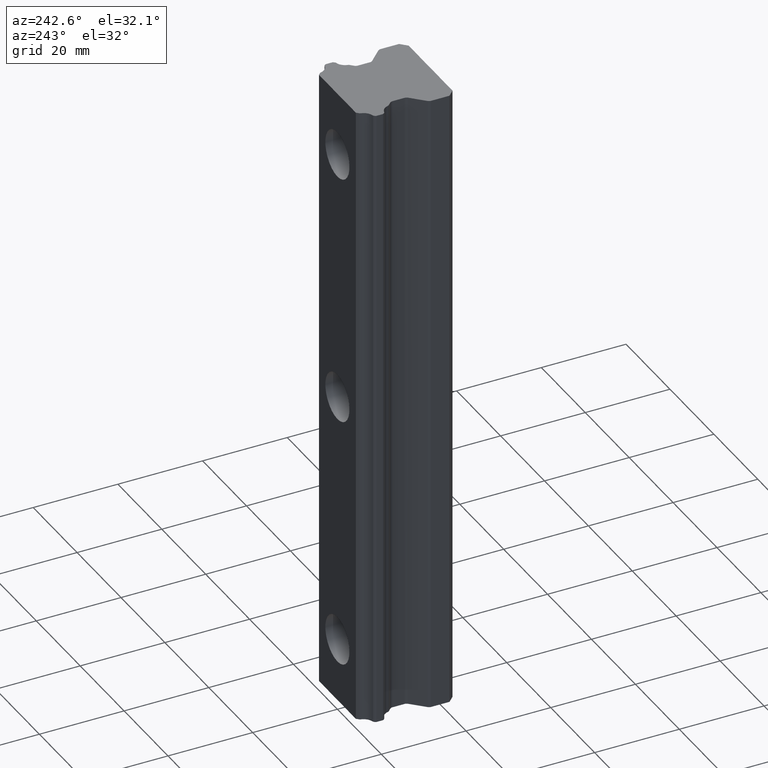
[diagram: clean part render]
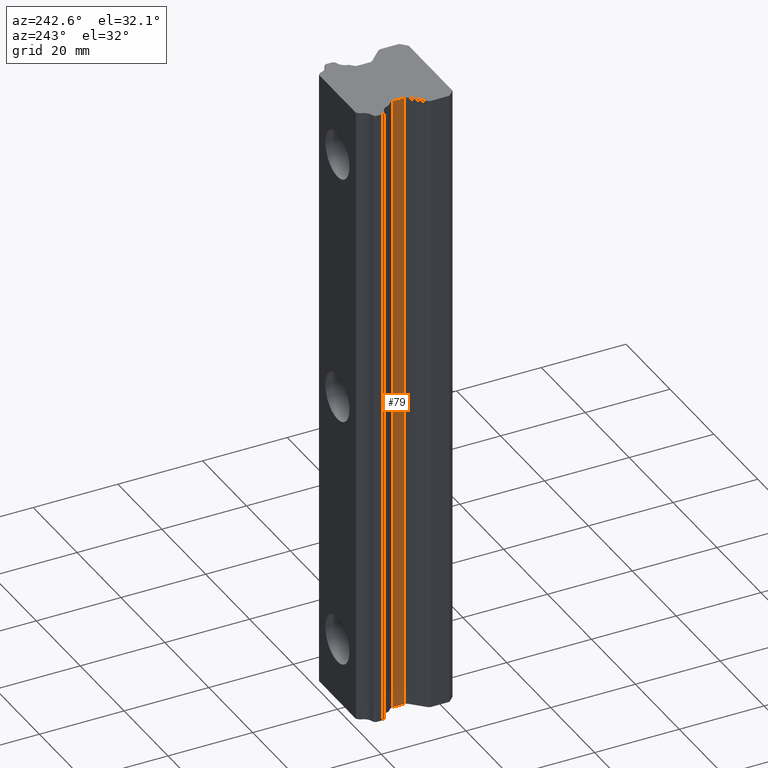
[diagram: same view with one face highlighted and labeled with its STEP entity id]
A machine part, auxiliary view. The second image highlights one B-rep face of the part: STEP entity #79.
In plain terms, the highlighted planar face has unit normal (-1, 0, 0).
Its self-contained STEP definition (entity closure, byte-faithful):
#59 = ORIENTED_EDGE ( 'NONE', *, *, #466, .T. ) ;
#79 = ADVANCED_FACE ( 'NONE', ( #598 ), #597, .T. ) ;
#82 = ORIENTED_EDGE ( 'NONE', *, *, #461, .T. ) ;
#97 = EDGE_LOOP ( 'NONE', ( #82, #108, #59, #111 ) ) ;
#104 = EDGE_CURVE ( 'NONE', #459, #492, #636, .T. ) ;
#108 = ORIENTED_EDGE ( 'NONE', *, *, #104, .T. ) ;
#111 = ORIENTED_EDGE ( 'NONE', *, *, #123, .F. ) ;
#123 = EDGE_CURVE ( 'NONE', #517, #509, #670, .T. ) ;
#459 = VERTEX_POINT ( 'NONE', #1283 ) ;
#461 = EDGE_CURVE ( 'NONE', #517, #459, #1282, .T. ) ;
#466 = EDGE_CURVE ( 'NONE', #492, #509, #1267, .T. ) ;
#492 = VERTEX_POINT ( 'NONE', #1463 ) ;
#509 = VERTEX_POINT ( 'NONE', #1487 ) ;
#517 = VERTEX_POINT ( 'NONE', #1528 ) ;
#594 = CARTESIAN_POINT ( 'NONE',  ( -7.900000000000000400, -8.934076562374000800, -75.00000000000000000 ) ) ;
#595 = AXIS2_PLACEMENT_3D ( 'NONE', #594, #659, #658 ) ;
#597 = PLANE ( 'NONE',  #595 ) ;
#598 = FACE_OUTER_BOUND ( 'NONE', #97, .T. ) ;
#633 = DIRECTION ( 'NONE',  ( 0.0000000000000000000, -1.000000000000000000, 0.0000000000000000000 ) ) ;
#634 = VECTOR ( 'NONE', #633, 1000.000000000000000 ) ;
#635 = CARTESIAN_POINT ( 'NONE',  ( -7.900000000000000400, 0.0000000000000000000, -75.00000000000000000 ) ) ;
#636 = LINE ( 'NONE', #635, #634 ) ;
#658 = DIRECTION ( 'NONE',  ( 0.0000000000000000000, 0.0000000000000000000, 1.000000000000000000 ) ) ;
#659 = DIRECTION ( 'NONE',  ( -1.000000000000000000, 0.0000000000000000000, 0.0000000000000000000 ) ) ;
#667 = DIRECTION ( 'NONE',  ( 0.0000000000000000000, -1.000000000000000000, 0.0000000000000000000 ) ) ;
#668 = VECTOR ( 'NONE', #667, 1000.000000000000000 ) ;
#669 = CARTESIAN_POINT ( 'NONE',  ( -7.900000000000000400, 0.0000000000000000000, 75.00000000000000000 ) ) ;
#670 = LINE ( 'NONE', #669, #668 ) ;
#760 = VECTOR ( 'NONE', #1019, 1000.000000000000000 ) ;
#761 = CARTESIAN_POINT ( 'NONE',  ( -7.900000000000000400, -11.74571559084000000, -75.00000000000000000 ) ) ;
#1019 = DIRECTION ( 'NONE',  ( 0.0000000000000000000, 0.0000000000000000000, 1.000000000000000000 ) ) ;
#1267 = LINE ( 'NONE', #761, #760 ) ;
#1279 = DIRECTION ( 'NONE',  ( 0.0000000000000000000, 0.0000000000000000000, -1.000000000000000000 ) ) ;
#1280 = VECTOR ( 'NONE', #1279, 1000.000000000000000 ) ;
#1281 = CARTESIAN_POINT ( 'NONE',  ( -7.900000000000000400, -8.934076562374000800, -75.00000000000000000 ) ) ;
#1282 = LINE ( 'NONE', #1281, #1280 ) ;
#1283 = CARTESIAN_POINT ( 'NONE',  ( -7.900000000000000400, -8.934076562374000800, -75.00000000000000000 ) ) ;
#1463 = CARTESIAN_POINT ( 'NONE',  ( -7.900000000000000400, -11.74571559084000000, -75.00000000000000000 ) ) ;
#1487 = CARTESIAN_POINT ( 'NONE',  ( -7.900000000000000400, -11.74571559084000000, 75.00000000000000000 ) ) ;
#1528 = CARTESIAN_POINT ( 'NONE',  ( -7.900000000000000400, -8.934076562374000800, 75.00000000000000000 ) ) ;